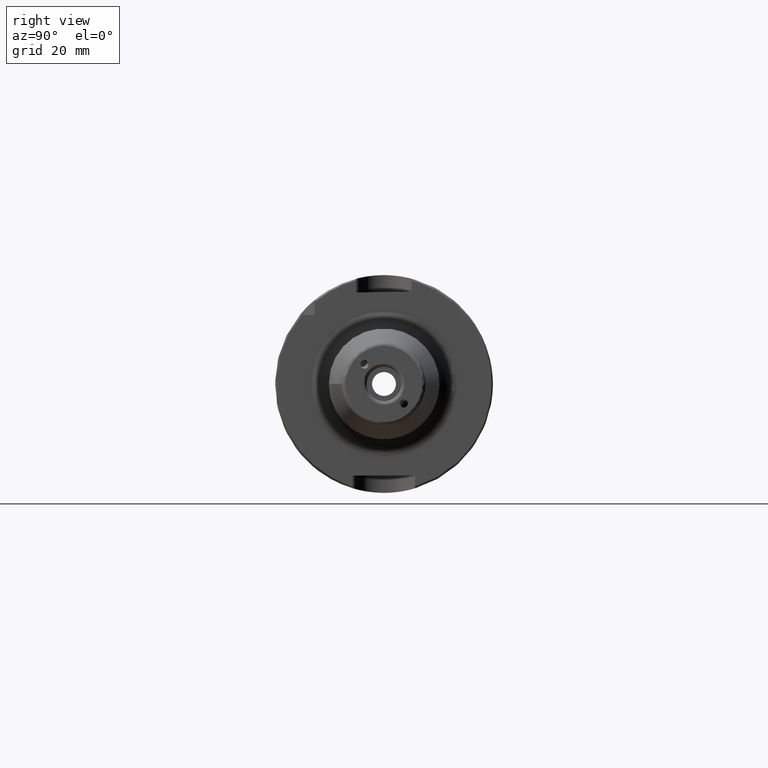
[diagram: clean part render]
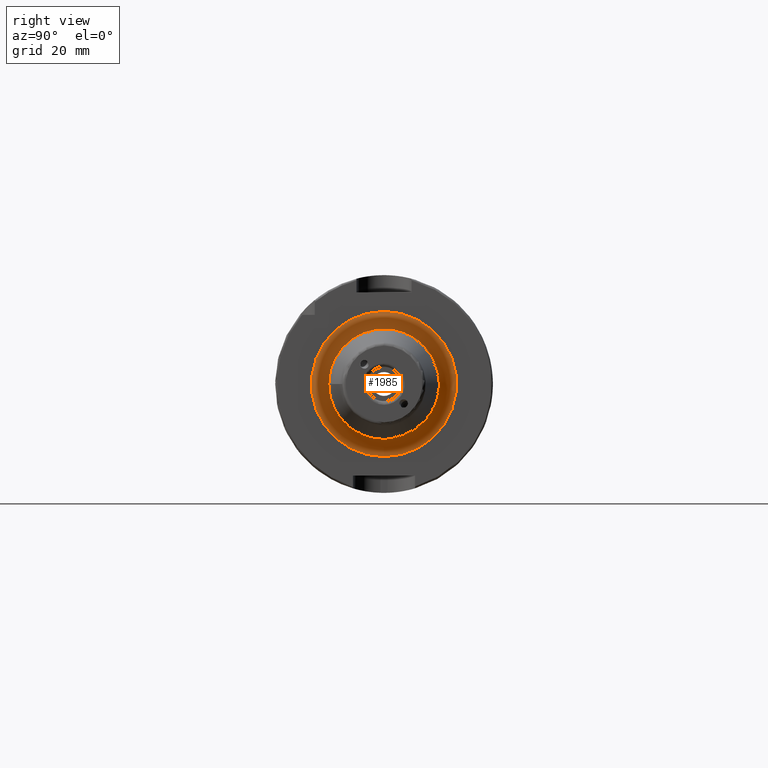
[diagram: same view with one face highlighted and labeled with its STEP entity id]
A machine part, right view. The second image highlights one B-rep face of the part: STEP entity #1985.
In plain terms, the highlighted toroidal blend (fillet) surface has major radius 21 mm and minor (blend) radius 5 mm.
Its self-contained STEP definition (entity closure, byte-faithful):
#146=TOROIDAL_SURFACE('',#2141,21.,5.);
#222=FACE_OUTER_BOUND('',#344,.T.);
#344=EDGE_LOOP('',(#1366,#1367,#1368,#1369,#1370));
#692=CIRCLE('',#2142,16.);
#693=CIRCLE('',#2143,5.);
#694=CIRCLE('',#2144,21.);
#695=CIRCLE('',#2145,16.);
#820=VERTEX_POINT('',#3032);
#821=VERTEX_POINT('',#3033);
#822=VERTEX_POINT('',#3035);
#1032=EDGE_CURVE('',#820,#821,#692,.T.);
#1033=EDGE_CURVE('',#821,#822,#693,.T.);
#1034=EDGE_CURVE('',#822,#822,#694,.T.);
#1035=EDGE_CURVE('',#821,#820,#695,.T.);
#1366=ORIENTED_EDGE('',*,*,#1032,.T.);
#1367=ORIENTED_EDGE('',*,*,#1033,.T.);
#1368=ORIENTED_EDGE('',*,*,#1034,.T.);
#1369=ORIENTED_EDGE('',*,*,#1033,.F.);
#1370=ORIENTED_EDGE('',*,*,#1035,.T.);
#1985=ADVANCED_FACE('',(#222),#146,.F.);
#2141=AXIS2_PLACEMENT_3D('',#3031,#2425,#2426);
#2142=AXIS2_PLACEMENT_3D('',#3034,#2427,#2428);
#2143=AXIS2_PLACEMENT_3D('',#3036,#2429,#2430);
#2144=AXIS2_PLACEMENT_3D('',#3037,#2431,#2432);
#2145=AXIS2_PLACEMENT_3D('',#3038,#2433,#2434);
#2425=DIRECTION('center_axis',(-1.,0.,0.));
#2426=DIRECTION('ref_axis',(0.,0.,1.));
#2427=DIRECTION('center_axis',(-1.,0.,0.));
#2428=DIRECTION('ref_axis',(0.,-1.,-1.22464679914735E-16));
#2429=DIRECTION('center_axis',(0.,-1.,1.22464679914735E-16));
#2430=DIRECTION('ref_axis',(0.,-1.22464679914735E-16,-1.));
#2431=DIRECTION('center_axis',(1.,0.,0.));
#2432=DIRECTION('ref_axis',(0.,-1.,-1.22464679914735E-16));
#2433=DIRECTION('center_axis',(-1.,0.,0.));
#2434=DIRECTION('ref_axis',(0.,-1.,-1.22464679914735E-16));
#3031=CARTESIAN_POINT('Origin',(31.,3.33066907387547E-15,0.));
#3032=CARTESIAN_POINT('',(31.,-16.,-1.95943487863577E-15));
#3033=CARTESIAN_POINT('',(31.,1.3712341952397E-15,-16.));
#3034=CARTESIAN_POINT('Origin',(31.,3.33066907387547E-15,0.));
#3035=CARTESIAN_POINT('',(26.,7.58910795666028E-16,-21.));
#3036=CARTESIAN_POINT('Origin',(31.,7.58910795666028E-16,-21.));
#3037=CARTESIAN_POINT('Origin',(26.,3.33066907387547E-15,0.));
#3038=CARTESIAN_POINT('Origin',(31.,3.33066907387547E-15,0.));